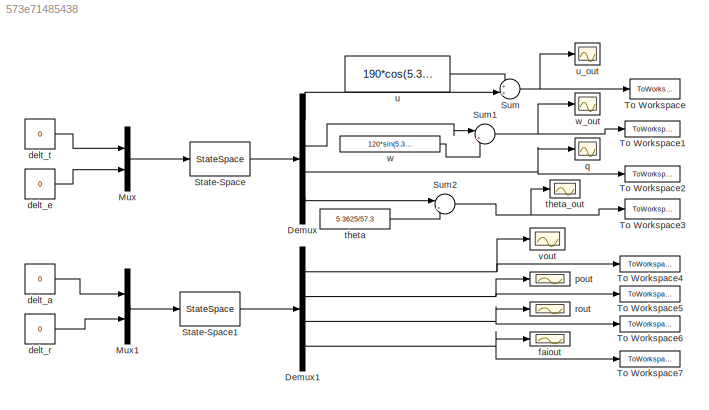
MODEL slx_573e71485438
KIND model
CONFIG AbsTol = auto
CONFIG FixedStep = auto
CONFIG MaxStep = auto
CONFIG MinStep = auto
CONFIG RelTol = 1e-3
CONFIG SampleTimeConstraint = Unconstrained
CONFIG Solver = VariableStepAuto
CONFIG SolverMode = Auto
CONFIG SolverName = VariableStepAuto
CONFIG StartTime = 0.0
CONFIG StopTime = 600
BLOCK [Demux] Demux
  DisplayOption = bar
  Ports = [1, 4]
BLOCK [Demux] Demux1
  DisplayOption = bar
  Ports = [1, 4]
BLOCK [Mux] Mux
  DisplayOption = bar
  Inputs = 2
  Ports = [2, 1]
BLOCK [Mux] Mux1
  DisplayOption = bar
  Inputs = 2
  Ports = [2, 1]
BLOCK [StateSpace] State-Space
  A = [-0.00965935929732080	0.0369840269784605	0.283311074727651	-9.73308260370071;\n-0.102903878346184	-0.422445640236601	182.819259963972	-0.913622921221361;\n-3.22311254514824e-06	-0.000119526616308189	-0.452040286052541	0;\n0	0	1	0]
  B = [5.27116379592484	-0.000192464793591287;\n0	-0.168532156958147\n;0	-0.0933597179368480;\n0	0]
  C = [1 0 0 0;0 1 0 0;0 0 1 0;0 0 0 1]
  D = [0 0;0 0;0 0;0 0]
  Ports = [1, 1]
  X0 = [0 0 0 0]
BLOCK [StateSpace] State-Space1
  A = [-0.133742123350947	0.0670499317885129	-189.484027251245	9.73308260370071;\n-0.106749469992986	-1.48755186790463	0.399998266574683	0;\n0.0215189406635620	-0.0238598201074520	-0.200157981320062	0\n;0	1	0.0938677866428447	0]
  B = [0.0232840480007971	0.0635691469228112\n;-7.62685051510270	1.94638070253618;\n-0.315501574261104	-0.960451844576626;\n0	0]
  C = [1 0 0 0;0 1 0 0; 0 0 1 0; 0 0 0 1]
  D = [0 0 ; 0 0 ;0 0 ;0 0 ]
  Ports = [1, 1]
  X0 = [0.3923; -0.0157; 0.0469 ;0.9185]
BLOCK [Sum] Sum
  IconShape = round
  InputSameDT = off
  Inputs = 2
  OutDataTypeStr = Inherit: Inherit via internal rule
  Ports = [2, 1]
  SaturateOnIntegerOverflow = off
BLOCK [Sum] Sum1
  IconShape = round
  InputSameDT = off
  Inputs = |++
  OutDataTypeStr = Inherit: Inherit via internal rule
  Ports = [2, 1]
  SaturateOnIntegerOverflow = off
BLOCK [Sum] Sum2
  IconShape = round
  InputSameDT = off
  Inputs = |++
  OutDataTypeStr = Inherit: Inherit via internal rule
  Ports = [2, 1]
  SaturateOnIntegerOverflow = off
BLOCK [ToWorkspace] To Workspace
  FixptAsFi = on
  MaxDataPoints = inf
  Ports = [1]
  SampleTime = -1
  Save2DSignal = 3-D array (concatenate along third dimension)
  SaveFormat = Timeseries
  VariableName = u
BLOCK [ToWorkspace] To Workspace1
  FixptAsFi = on
  MaxDataPoints = inf
  Ports = [1]
  SampleTime = -1
  Save2DSignal = 3-D array (concatenate along third dimension)
  SaveFormat = Timeseries
  VariableName = w
BLOCK [ToWorkspace] To Workspace2
  FixptAsFi = on
  MaxDataPoints = inf
  Ports = [1]
  SampleTime = -1
  Save2DSignal = 3-D array (concatenate along third dimension)
  SaveFormat = Timeseries
  VariableName = q
BLOCK [ToWorkspace] To Workspace3
  FixptAsFi = on
  MaxDataPoints = inf
  Ports = [1]
  SampleTime = -1
  Save2DSignal = 3-D array (concatenate along third dimension)
  SaveFormat = Timeseries
  VariableName = theta
BLOCK [ToWorkspace] To Workspace4
  FixptAsFi = on
  MaxDataPoints = inf
  Ports = [1]
  SampleTime = -1
  Save2DSignal = 3-D array (concatenate along third dimension)
  SaveFormat = Timeseries
  VariableName = v
BLOCK [ToWorkspace] To Workspace5
  FixptAsFi = on
  MaxDataPoints = inf
  Ports = [1]
  SampleTime = -1
  Save2DSignal = 3-D array (concatenate along third dimension)
  SaveFormat = Timeseries
  VariableName = p
BLOCK [ToWorkspace] To Workspace6
  FixptAsFi = on
  MaxDataPoints = inf
  Ports = [1]
  SampleTime = -1
  Save2DSignal = 3-D array (concatenate along third dimension)
  SaveFormat = Timeseries
  VariableName = r
BLOCK [ToWorkspace] To Workspace7
  FixptAsFi = on
  MaxDataPoints = inf
  Ports = [1]
  SampleTime = -1
  Save2DSignal = 3-D array (concatenate along third dimension)
  SaveFormat = Timeseries
  VariableName = fai
BLOCK [Constant] delt_a
  Value = 0
BLOCK [Constant] delt_e
  Value = 0
BLOCK [Constant] delt_r
  Value = 0
BLOCK [Constant] delt_t
  Value = 0
BLOCK [Scope] faiout
  Ports = [1]
  ScopeSpecificationString = Simulink.scopes.TimeScopeBlockCfg('CurrentConfiguration', extmgr.ConfigurationSet(extmgr.Configuration('Core','General UI',true),extmgr.Configuration('Core','Source UI',true),extmgr.Configuration('Sources','WiredSimulink',true,'DataLoggingVariableName','ScopeData7'),extmgr.Configuration('Visuals','Time Domain',true,'SerializedDisplays',{struct('MinYLimReal','-0.11421','MaxYLimReal','1.03325','YLab...<+1367ch>
BLOCK [Scope] pout
  Ports = [1]
  ScopeSpecificationString = Simulink.scopes.TimeScopeBlockCfg('CurrentConfiguration', extmgr.ConfigurationSet(extmgr.Configuration('Core','General UI',true),extmgr.Configuration('Core','Source UI',true),extmgr.Configuration('Sources','WiredSimulink',true,'DataLoggingVariableName','ScopeData5','DataLoggingLimitDataPoints',true,'DataLoggingSaveFormat','Array','DataLoggingDecimation','1','DataLoggingDecimateData',true),extmgr.C...<+1492ch>
BLOCK [Scope] q
  Ports = [1]
  ScopeSpecificationString = Simulink.scopes.TimeScopeBlockCfg('CurrentConfiguration', extmgr.ConfigurationSet(extmgr.Configuration('Core','General UI',true),extmgr.Configuration('Core','Source UI',true),extmgr.Configuration('Sources','WiredSimulink',true,'DataLoggingVariableName','ScopeData2'),extmgr.Configuration('Visuals','Time Domain',true,'SerializedDisplays',{struct('MinYLimReal','-0.00015','MaxYLimReal','0.00002','YLab...<+1366ch>
BLOCK [Scope] rout
  Ports = [1]
  ScopeSpecificationString = Simulink.scopes.TimeScopeBlockCfg('CurrentConfiguration', extmgr.ConfigurationSet(extmgr.Configuration('Core','General UI',true),extmgr.Configuration('Core','Source UI',true),extmgr.Configuration('Sources','WiredSimulink',true,'DataLoggingVariableName','ScopeData6'),extmgr.Configuration('Visuals','Time Domain',true,'SerializedDisplays',{struct('MinYLimReal','-0.00587','MaxYLimReal','0.05276','YLab...<+1367ch>
BLOCK [Constant] theta
  Value = 5.3625/57.3
BLOCK [Scope] theta_out
  Ports = [1]
  ScopeSpecificationString = Simulink.scopes.TimeScopeBlockCfg('CurrentConfiguration', extmgr.ConfigurationSet(extmgr.Configuration('Core','General UI',true),extmgr.Configuration('Core','Source UI',true),extmgr.Configuration('Sources','WiredSimulink',true,'DataLoggingVariableName','ScopeData3'),extmgr.Configuration('Visuals','Time Domain',true,'SerializedDisplays',{struct('MinYLimReal','0.09345','MaxYLimReal','0.09438','YLabe...<+1361ch>
BLOCK [Constant] u
  Value = 190*cos(5.3625/57.3)
BLOCK [Scope] u_out 
  Ports = [1]
  ScopeSpecificationString = Simulink.scopes.TimeScopeBlockCfg('CurrentConfiguration', extmgr.ConfigurationSet(extmgr.Configuration('Core','General UI',true),extmgr.Configuration('Core','Source UI',true),extmgr.Configuration('Sources','WiredSimulink',true),extmgr.Configuration('Visuals','Time Domain',true,'SerializedDisplays',{struct('MinYLimReal','189.11005','MaxYLimReal','189.18814','YLabelReal','','MinYLimMag','189.11005',...<+1370ch>
BLOCK [Scope] vout
  Ports = [1]
  ScopeSpecificationString = Simulink.scopes.TimeScopeBlockCfg('CurrentConfiguration', extmgr.ConfigurationSet(extmgr.Configuration('Core','General UI',true),extmgr.Configuration('Core','Source UI',true),extmgr.Configuration('Sources','WiredSimulink',true,'DataLoggingVariableName','ScopeData4'),extmgr.Configuration('Visuals','Time Domain',true,'SerializedDisplays',{struct('MinYLimReal','-0.05259','MaxYLimReal','0.44173','YLab...<+1367ch>
BLOCK [Constant] w
  Value = 120*sin(5.3625/57.3)
BLOCK [Scope] w_out
  Ports = [1]
  ScopeSpecificationString = Simulink.scopes.TimeScopeBlockCfg('CurrentConfiguration', extmgr.ConfigurationSet(extmgr.Configuration('Core','General UI',true),extmgr.Configuration('Core','Source UI',true),extmgr.Configuration('Sources','WiredSimulink',true,'DataLoggingVariableName','ScopeData1'),extmgr.Configuration('Visuals','Time Domain',true,'SerializedDisplays',{struct('MinYLimReal','11.08643','MaxYLimReal','12.33626','YLa...<+1369ch>
NET Demux1:1 -> To Workspace4:1, vout:1
NET Demux1:2 -> To Workspace5:1, pout:1
NET Demux1:3 -> To Workspace6:1, rout:1
NET Demux1:4 -> To Workspace7:1, faiout:1
LINE Demux:1 -> Sum:2
LINE Demux:2 -> Sum1:1
NET Demux:3 -> To Workspace2:1, q:1
LINE Demux:4 -> Sum2:1
LINE Mux1:1 -> State-Space1:1
LINE Mux:1 -> State-Space:1
LINE State-Space1:1 -> Demux1:1
LINE State-Space:1 -> Demux:1
NET Sum1:1 -> To Workspace1:1, w_out:1
NET Sum2:1 -> To Workspace3:1, theta_out:1
NET Sum:1 -> To Workspace:1, u_out :1
LINE delt_a:1 -> Mux1:1
LINE delt_e:1 -> Mux:2
LINE delt_r:1 -> Mux1:2
LINE delt_t:1 -> Mux:1
LINE theta:1 -> Sum2:2
LINE u:1 -> Sum:1
LINE w:1 -> Sum1:2
note: NET lines group one-source signal fan-out (src -> all destinations, sorted); 1:1 wires keep LINE
